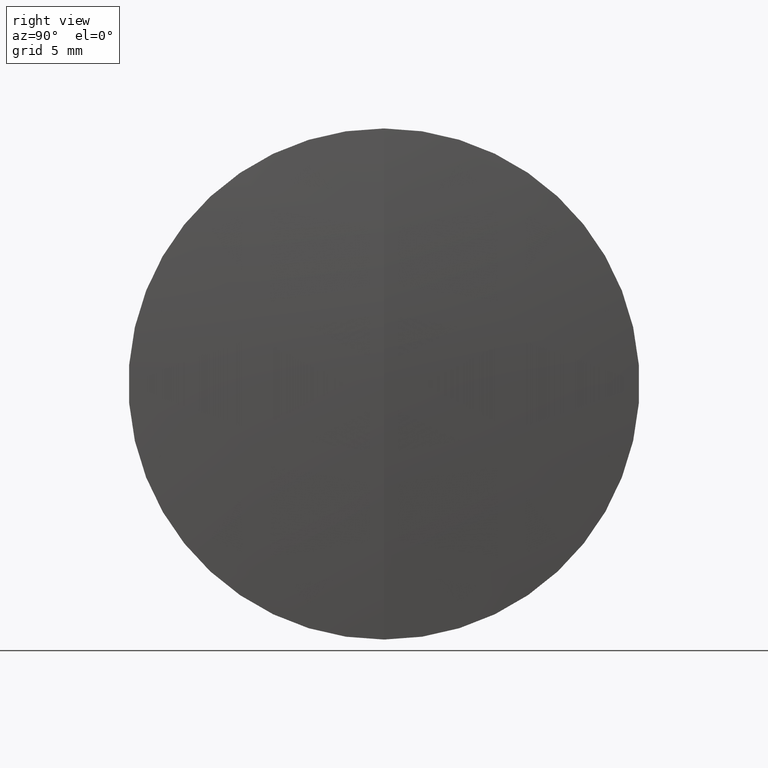
[diagram: clean part render]
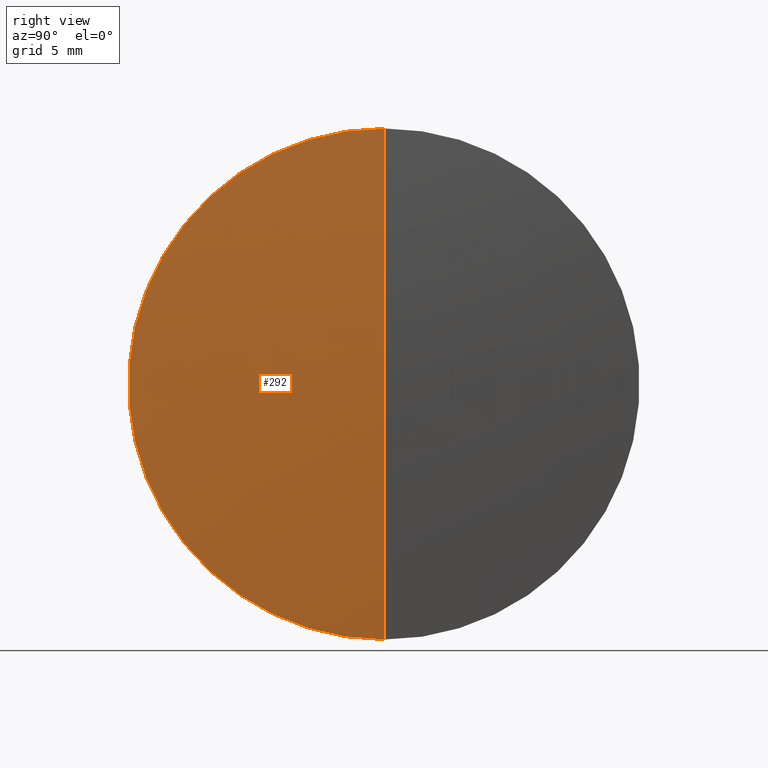
[diagram: same view with one face highlighted and labeled with its STEP entity id]
A machine part, right view. The second image highlights one B-rep face of the part: STEP entity #292.
In plain terms, the highlighted spherical surface has radius 230.291 mm.
Its self-contained STEP definition (entity closure, byte-faithful):
#2 = CARTESIAN_POINT ( 'NONE',  ( 57.82353035397189000, 0.0000000000000000000, 0.0000000000000000000 ) ) ;
#10 = CIRCLE ( 'NONE', #272, 19.99999999999998900 ) ;
#28 = AXIS2_PLACEMENT_3D ( 'NONE', #2, #165, #141 ) ;
#34 = CIRCLE ( 'NONE', #28, 230.2909999999999700 ) ;
#46 = DIRECTION ( 'NONE',  ( 0.0000000000000000000, 0.0000000000000000000, 1.000000000000000000 ) ) ;
#49 = EDGE_LOOP ( 'NONE', ( #268, #95, #343 ) ) ;
#52 = AXIS2_PLACEMENT_3D ( 'NONE', #301, #119, #281 ) ;
#69 = VERTEX_POINT ( 'NONE', #175 ) ;
#75 = CARTESIAN_POINT ( 'NONE',  ( 287.2444201635094600, 0.0000000000000000000, 0.0000000000000000000 ) ) ;
#95 = ORIENTED_EDGE ( 'NONE', *, *, #212, .T. ) ;
#102 = VERTEX_POINT ( 'NONE', #308 ) ;
#112 = AXIS2_PLACEMENT_3D ( 'NONE', #164, #299, #251 ) ;
#119 = DIRECTION ( 'NONE',  ( 0.0000000000000000000, -1.000000000000000000, 0.0000000000000000000 ) ) ;
#141 = DIRECTION ( 'NONE',  ( 0.0000000000000000000, -1.224646799147353200E-016, 1.000000000000000000 ) ) ;
#164 = CARTESIAN_POINT ( 'NONE',  ( 57.82353035397189000, 0.0000000000000000000, 0.0000000000000000000 ) ) ;
#165 = DIRECTION ( 'NONE',  ( -0.0000000000000000000, 1.000000000000000000, 1.224646799147353200E-016 ) ) ;
#175 = CARTESIAN_POINT ( 'NONE',  ( 287.2444201635094600, 2.449293598294706500E-015, -19.99999999999998900 ) ) ;
#196 = CARTESIAN_POINT ( 'NONE',  ( 287.2444201635094600, 0.0000000000000000000, 19.99999999999998900 ) ) ;
#212 = EDGE_CURVE ( 'NONE', #102, #241, #215, .T. ) ;
#215 = CIRCLE ( 'NONE', #52, 230.2909999999999700 ) ;
#228 = SPHERICAL_SURFACE ( 'NONE', #112, 230.2909999999999700 ) ;
#241 = VERTEX_POINT ( 'NONE', #196 ) ;
#245 = DIRECTION ( 'NONE',  ( -1.000000000000000000, -0.0000000000000000000, -0.0000000000000000000 ) ) ;
#250 = EDGE_CURVE ( 'NONE', #102, #69, #34, .T. ) ;
#251 = DIRECTION ( 'NONE',  ( 0.0000000000000000000, 0.0000000000000000000, 1.000000000000000000 ) ) ;
#255 = FACE_OUTER_BOUND ( 'NONE', #49, .T. ) ;
#268 = ORIENTED_EDGE ( 'NONE', *, *, #250, .F. ) ;
#272 = AXIS2_PLACEMENT_3D ( 'NONE', #75, #245, #46 ) ;
#281 = DIRECTION ( 'NONE',  ( 0.0000000000000000000, 0.0000000000000000000, -1.000000000000000000 ) ) ;
#292 = ADVANCED_FACE ( 'NONE', ( #255 ), #228, .T. ) ;
#299 = DIRECTION ( 'NONE',  ( 0.0000000000000000000, 1.000000000000000000, 0.0000000000000000000 ) ) ;
#301 = CARTESIAN_POINT ( 'NONE',  ( 57.82353035397189000, 0.0000000000000000000, 0.0000000000000000000 ) ) ;
#308 = CARTESIAN_POINT ( 'NONE',  ( 288.1145303539718200, 0.0000000000000000000, 1.410125680112215500E-014 ) ) ;
#339 = EDGE_CURVE ( 'NONE', #69, #241, #10, .T. ) ;
#343 = ORIENTED_EDGE ( 'NONE', *, *, #339, .F. ) ;